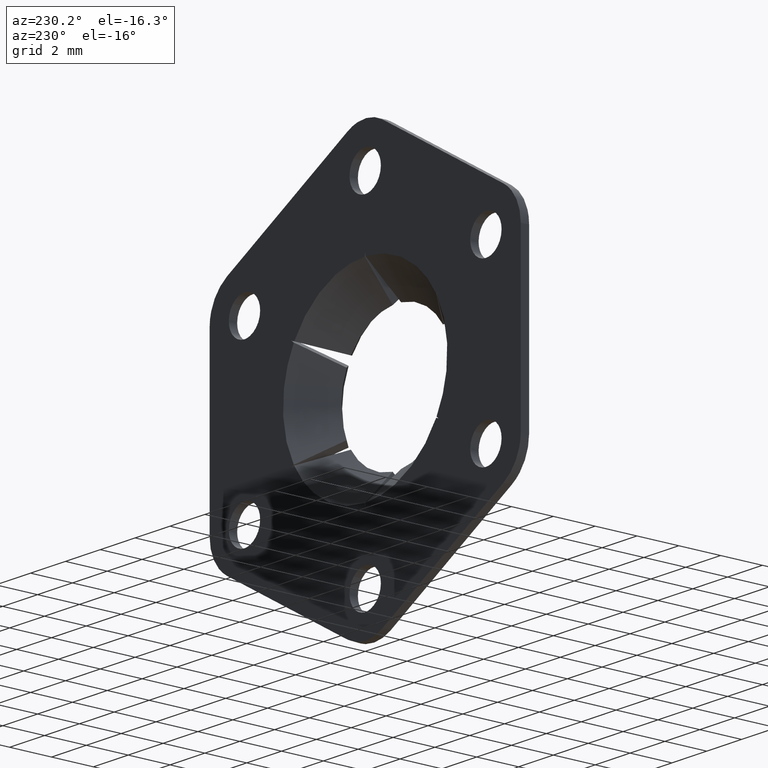
[diagram: clean part render]
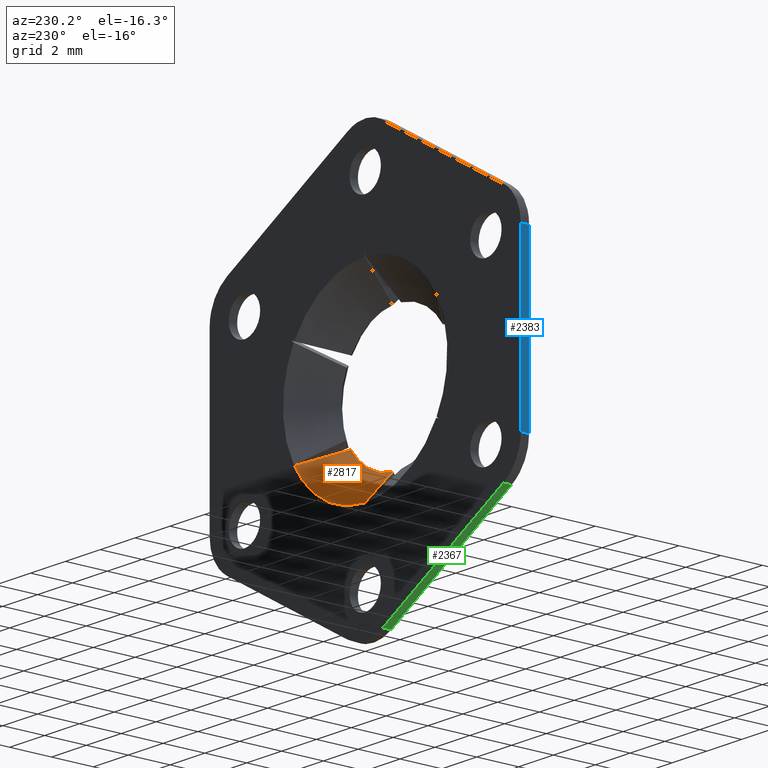
[diagram: same view with three faces highlighted in distinct colors, each labeled with its STEP entity id]
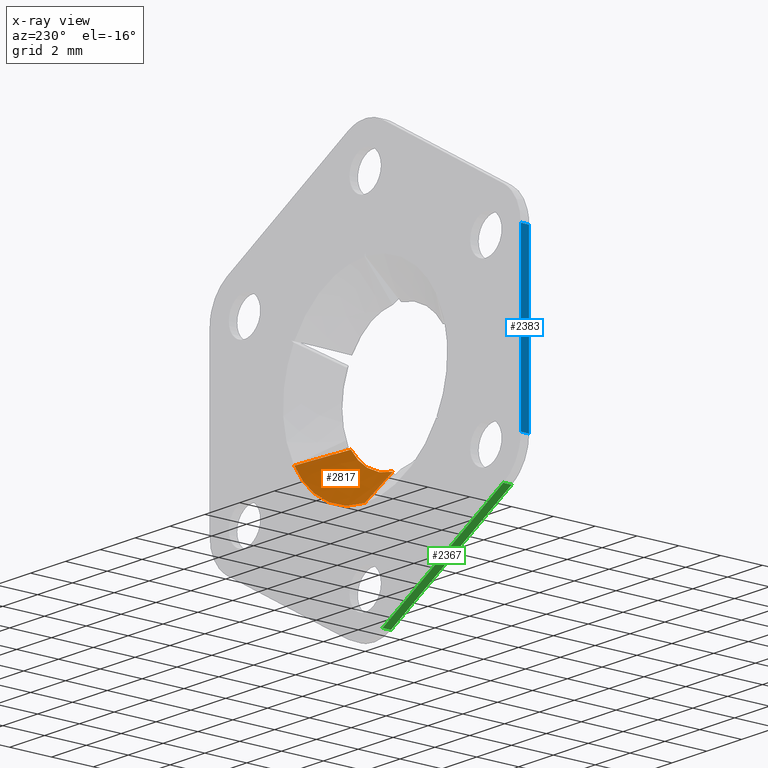
[diagram: x-ray of the same camera — body ghosted, the three highlighted faces saturated]
A machine part, auxiliary view with three faces highlighted in distinct colors.
The next image is the same camera in x-ray (body ghosted, the three faces saturated) — at least one of them is partly hidden behind the body in this view.
Their STEP definitions:

[orange] entity #2817 — the highlighted face is a freeform B-spline surface patch.
#1585=CARTESIAN_POINT('',(0.240713145633863,-1.517157287525135,-3.190933590334595));
#1586=VERTEX_POINT('',#1585);
#1607=CARTESIAN_POINT('',(2.643072979590305,-1.517157286957820,-1.803930494038500));
#1608=VERTEX_POINT('',#1607);
#1614=CARTESIAN_POINT('',(0.240713145633863,-1.517157287525135,-3.190933590334595));
#1615=CARTESIAN_POINT('',(0.456784097904842,-1.517157287569473,-3.174662166818853));
#1616=CARTESIAN_POINT('',(0.826433084609333,-1.517157287611683,-3.108547045535127));
#1617=CARTESIAN_POINT('',(1.311679362488460,-1.517157287586681,-2.930310892743378));
#1618=CARTESIAN_POINT('',(1.780297762872709,-1.517157287493084,-2.679156640261916));
#1619=CARTESIAN_POINT('',(2.240803580496819,-1.517157287299134,-2.316388060110316));
#1620=CARTESIAN_POINT('',(2.525153824678671,-1.517157287077747,-1.976741436605167));
#1621=CARTESIAN_POINT('',(2.643072979590305,-1.517157286957820,-1.803930494038500));
#1622=B_SPLINE_CURVE_WITH_KNOTS('',3,(#1614,#1615,#1616,#1617,#1618,#1619,#1620,#1621),.UNSPECIFIED.,.F.,.U.,(4,1,1,1,1,4),(5.084540E-009,0.650043009950569,1.120765554245480,1.546651611924333,2.241528713770202,2.869156555618945),.UNSPECIFIED.);
#1623=EDGE_CURVE('',#1586,#1608,#1622,.T.);
#2622=CARTESIAN_POINT('',(0.023580964328137,0.0,-4.717098346197560));
#2623=VERTEX_POINT('',#2622);
#2624=CARTESIAN_POINT('',(0.240713145633863,-1.517157287525135,-3.190933590334595));
#2625=CARTESIAN_POINT('',(0.168061260461667,-1.013418259662688,-3.701584503778697));
#2626=CARTESIAN_POINT('',(0.095773327830360,-0.507053827906272,-4.209677290071776));
#2627=CARTESIAN_POINT('',(0.023580964328138,-1.812589E-015,-4.717098346197560));
#2628=QUASI_UNIFORM_CURVE('',3,(#2624,#2625,#2626,#2627),.UNSPECIFIED.,.F.,.U.);
#2629=EDGE_CURVE('',#1586,#2623,#2628,.T.);
#2653=CARTESIAN_POINT('',(4.073336518672470,0.0,-2.378970886711570));
#2654=VERTEX_POINT('',#2653);
#2660=CARTESIAN_POINT('',(4.073336518672470,3.667008E-016,-2.378970886711569));
#2661=CARTESIAN_POINT('',(3.597800812088004,-0.507053827719403,-2.187780779453508));
#2662=CARTESIAN_POINT('',(3.121635585550351,-1.013418259289739,-1.996337572405664));
#2663=CARTESIAN_POINT('',(2.643072979590321,-1.517157286957825,-1.803930494038472));
#2664=QUASI_UNIFORM_CURVE('',3,(#2660,#2661,#2662,#2663),.UNSPECIFIED.,.F.,.U.);
#2665=EDGE_CURVE('',#2654,#1608,#2664,.T.);
#2785=CARTESIAN_POINT('',(-0.011787059416764,-1.555086219788760,-3.162049098102651));
#2786=CARTESIAN_POINT('',(-0.017728779737951,0.038877155494719,-4.756001399052911));
#2787=CARTESIAN_POINT('',(1.916925098858187,-1.555086219788760,-3.169238691052020));
#2788=CARTESIAN_POINT('',(2.883224822984457,0.038877155494719,-4.766815182477822));
#2789=CARTESIAN_POINT('',(2.806043123381827,-1.555086219788760,-1.457674664148094));
#2790=CARTESIAN_POINT('',(4.220536938439889,0.038877155494719,-2.192471567317600));
#2798=(BOUNDED_SURFACE()B_SPLINE_SURFACE(1,2,((#2785,#2787,#2789),(#2786,#2788,#2790)),.UNSPECIFIED.,.F.,.F.,.U.)B_SPLINE_SURFACE_WITH_KNOTS((2,2),(3,3),(0.0,2.254204623251870),(0.0,5.344106603031733),.UNSPECIFIED.)GEOMETRIC_REPRESENTATION_ITEM()RATIONAL_B_SPLINE_SURFACE(((1.0,0.853223754631969,0.998837441838278),(1.0,0.853223754631969,0.998837441838278)))REPRESENTATION_ITEM('')SURFACE());
#2799=ORIENTED_EDGE('',*,*,#2629,.F.);
#2800=ORIENTED_EDGE('',*,*,#1623,.T.);
#2801=ORIENTED_EDGE('',*,*,#2665,.F.);
#2802=CARTESIAN_POINT('',(0.023580964328137,0.0,-4.717098346197560));
#2803=CARTESIAN_POINT('',(0.303884821325388,0.0,-4.715720408045939));
#2804=CARTESIAN_POINT('',(0.813294018977607,0.0,-4.667591369079773));
#2805=CARTESIAN_POINT('',(1.480632334951334,0.0,-4.492769297488779));
#2806=CARTESIAN_POINT('',(2.036332333208729,0.0,-4.267030685781545));
#2807=CARTESIAN_POINT('',(2.617800028568447,0.0,-3.946888194451245));
#2808=CARTESIAN_POINT('',(3.134438495033346,0.0,-3.548138765722741));
#2809=CARTESIAN_POINT('',(3.657190925897957,0.0,-3.006462849300850));
#2810=CARTESIAN_POINT('',(3.925572348627802,0.0,-2.632040789949782));
#2811=CARTESIAN_POINT('',(4.073336518672470,0.0,-2.378970886711570));
#2812=B_SPLINE_CURVE_WITH_KNOTS('',3,(#2802,#2803,#2804,#2805,#2806,#2807,#2808,#2809,#2810,#2811),.UNSPECIFIED.,.F.,.U.,(4,1,1,1,1,1,1,4),(3.502277E-009,0.840921717652735,1.528953748967219,2.064085501389633,2.637437126718061,3.516589755329715,4.013501153162691,4.892646820800907),.UNSPECIFIED.);
#2813=EDGE_CURVE('',#2623,#2654,#2812,.T.);
#2814=ORIENTED_EDGE('',*,*,#2813,.F.);
#2815=EDGE_LOOP('',(#2799,#2800,#2801,#2814));
#2816=FACE_OUTER_BOUND('',#2815,.T.);
#2817=ADVANCED_FACE('',(#2816),#2798,.F.);

[blue] entity #2383 — the highlighted face is a freeform B-spline surface patch.
#1334=CARTESIAN_POINT('',(-8.928203231628730,-0.400000000000019,4.000000000709535));
#1335=VERTEX_POINT('',#1334);
#1347=CARTESIAN_POINT('',(-8.928203231628730,-0.400000000000019,-3.999999999938440));
#1348=VERTEX_POINT('',#1347);
#1349=CARTESIAN_POINT('',(-8.928203231628730,-0.400000000000019,-3.999999999938440));
#1350=CARTESIAN_POINT('',(-8.928203231628730,-0.400000000000019,4.000000000709535));
#1351=QUASI_UNIFORM_CURVE('',1,(#1349,#1350),.UNSPECIFIED.,.F.,.U.);
#1352=EDGE_CURVE('',#1348,#1335,#1351,.T.);
#2073=CARTESIAN_POINT('',(-8.928203231628730,0.0,4.000000000709535));
#2074=VERTEX_POINT('',#2073);
#2089=CARTESIAN_POINT('',(-8.928203231628730,-0.400000000000019,4.000000000709535));
#2090=CARTESIAN_POINT('',(-8.928203231628730,0.0,4.000000000709535));
#2091=QUASI_UNIFORM_CURVE('',1,(#2089,#2090),.UNSPECIFIED.,.F.,.U.);
#2092=EDGE_CURVE('',#1335,#2074,#2091,.T.);
#2119=CARTESIAN_POINT('',(-8.928203231628730,0.0,-3.999999999938440));
#2120=VERTEX_POINT('',#2119);
#2138=CARTESIAN_POINT('',(-8.928203231628730,0.0,-3.999999999938440));
#2139=CARTESIAN_POINT('',(-8.928203231628730,-0.400000000000019,-3.999999999938440));
#2140=QUASI_UNIFORM_CURVE('',1,(#2138,#2139),.UNSPECIFIED.,.F.,.U.);
#2141=EDGE_CURVE('',#2120,#1348,#2140,.T.);
#2368=CARTESIAN_POINT('',(-8.928203231628730,-0.419979999224742,4.399599985236350));
#2369=CARTESIAN_POINT('',(-8.928203231628730,-0.419979999224742,-4.399600199041974));
#2370=CARTESIAN_POINT('',(-8.928203231628730,0.019980009953559,4.399599985236350));
#2371=CARTESIAN_POINT('',(-8.928203231628730,0.019980009953559,-4.399600199041974));
#2372=B_SPLINE_SURFACE_WITH_KNOTS('',1,1,((#2368,#2370),(#2369,#2371)),.UNSPECIFIED.,.F.,.F.,.U.,(2,2),(2,2),(0.0,8.799200184278323),(0.0,0.439960009178301),.UNSPECIFIED.);
#2373=CARTESIAN_POINT('',(-8.928203231628730,0.0,-3.999999999938440));
#2374=CARTESIAN_POINT('',(-8.928203231628730,0.0,4.000000000709535));
#2375=QUASI_UNIFORM_CURVE('',1,(#2373,#2374),.UNSPECIFIED.,.F.,.U.);
#2376=EDGE_CURVE('',#2120,#2074,#2375,.T.);
#2377=ORIENTED_EDGE('',*,*,#2376,.F.);
#2378=ORIENTED_EDGE('',*,*,#2141,.T.);
#2379=ORIENTED_EDGE('',*,*,#1352,.T.);
#2380=ORIENTED_EDGE('',*,*,#2092,.T.);
#2381=EDGE_LOOP('',(#2377,#2378,#2379,#2380));
#2382=FACE_OUTER_BOUND('',#2381,.T.);
#2383=ADVANCED_FACE('',(#2382),#2372,.F.);

[green] entity #2367 — the highlighted face is a freeform B-spline surface patch.
#1240=CARTESIAN_POINT('',(-1.000000000952954,-0.400000000000019,-9.732050806861320));
#1241=VERTEX_POINT('',#1240);
#1242=CARTESIAN_POINT('',(-7.928203231906480,-0.400000000000019,-5.732050806927210));
#1243=VERTEX_POINT('',#1242);
#1244=CARTESIAN_POINT('',(-1.000000000952954,-0.400000000000019,-9.732050806861320));
#1245=CARTESIAN_POINT('',(-7.928203231906480,-0.400000000000019,-5.732050806927210));
#1246=QUASI_UNIFORM_CURVE('',1,(#1244,#1245),.UNSPECIFIED.,.F.,.U.);
#1247=EDGE_CURVE('',#1241,#1243,#1246,.T.);
#2117=CARTESIAN_POINT('',(-7.928203231906480,0.0,-5.732050806927210));
#2118=VERTEX_POINT('',#2117);
#2132=CARTESIAN_POINT('',(-7.928203231906480,-0.400000000000019,-5.732050806927210));
#2133=CARTESIAN_POINT('',(-7.928203231906480,0.0,-5.732050806927210));
#2134=QUASI_UNIFORM_CURVE('',1,(#2132,#2133),.UNSPECIFIED.,.F.,.U.);
#2135=EDGE_CURVE('',#1243,#2118,#2134,.T.);
#2293=CARTESIAN_POINT('',(-1.000000000952954,0.0,-9.732050806861320));
#2294=VERTEX_POINT('',#2293);
#2312=CARTESIAN_POINT('',(-1.000000000952954,0.0,-9.732050806861320));
#2313=CARTESIAN_POINT('',(-1.000000000952954,-0.400000000000019,-9.732050806861320));
#2314=QUASI_UNIFORM_CURVE('',1,(#2312,#2313),.UNSPECIFIED.,.F.,.U.);
#2315=EDGE_CURVE('',#2294,#1241,#2314,.T.);
#2352=CARTESIAN_POINT('',(-8.274266969864412,-0.419979999224742,-5.532250814683285));
#2353=CARTESIAN_POINT('',(-0.653936077166134,-0.419979999224742,-9.931850906393608));
#2354=CARTESIAN_POINT('',(-8.274266969864412,0.019980009953559,-5.532250814683285));
#2355=CARTESIAN_POINT('',(-0.653936077166134,0.019980009953559,-9.931850906393608));
#2356=B_SPLINE_SURFACE_WITH_KNOTS('',1,1,((#2352,#2354),(#2353,#2355)),.UNSPECIFIED.,.F.,.F.,.U.,(2,2),(2,2),(0.0,8.799200184175220),(0.0,0.439960009178301),.UNSPECIFIED.);
#2357=CARTESIAN_POINT('',(-1.000000000952954,0.0,-9.732050806861320));
#2358=CARTESIAN_POINT('',(-7.928203231906480,0.0,-5.732050806927210));
#2359=QUASI_UNIFORM_CURVE('',1,(#2357,#2358),.UNSPECIFIED.,.F.,.U.);
#2360=EDGE_CURVE('',#2294,#2118,#2359,.T.);
#2361=ORIENTED_EDGE('',*,*,#2360,.F.);
#2362=ORIENTED_EDGE('',*,*,#2315,.T.);
#2363=ORIENTED_EDGE('',*,*,#1247,.T.);
#2364=ORIENTED_EDGE('',*,*,#2135,.T.);
#2365=EDGE_LOOP('',(#2361,#2362,#2363,#2364));
#2366=FACE_OUTER_BOUND('',#2365,.T.);
#2367=ADVANCED_FACE('',(#2366),#2356,.F.);